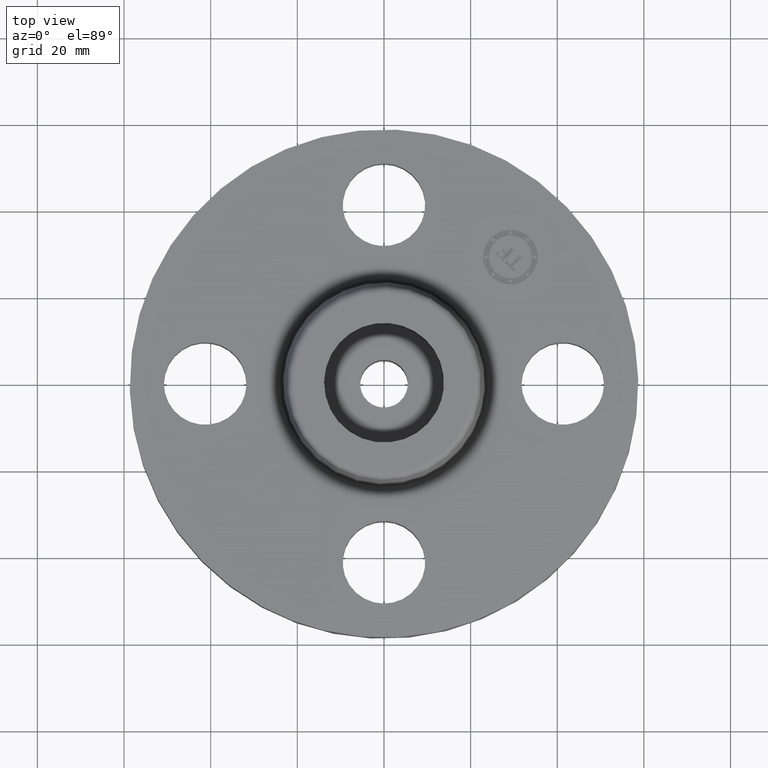
[diagram: clean part render]
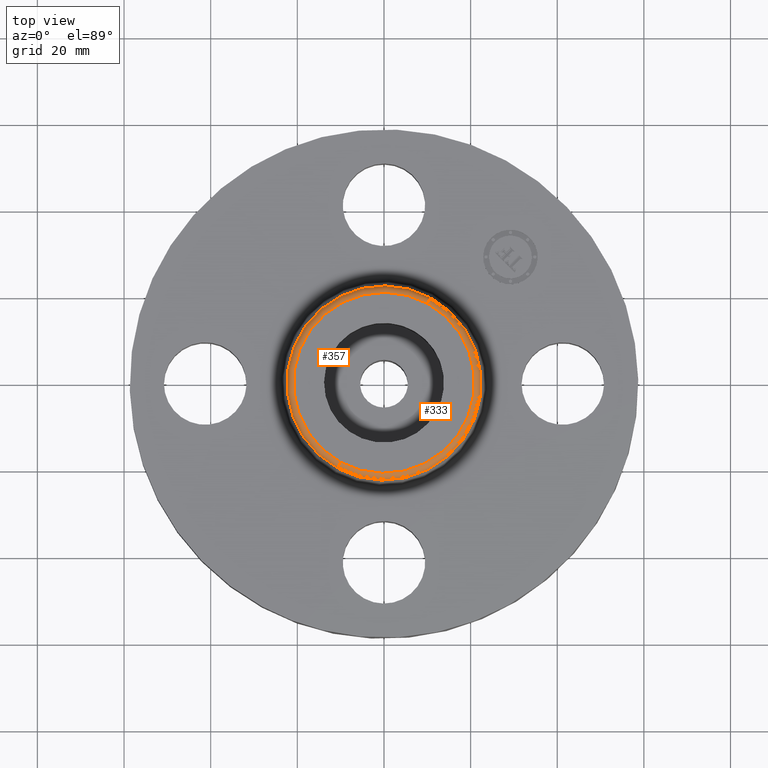
[diagram: same view with one multi-face feature highlighted, each face labeled with its STEP entity id]
A machine part, top view. The highlighted faces form ONE feature: a constant-radius fillet chain: 2 tangent blend faces with common blend radius 1.524 mm. The faces share edges in the B-rep.
Their STEP definitions:
[1] entity #333 (Torus):
#240=AXIS2_PLACEMENT_3D('Circle Axis2P3D',#238,#239,$) ;
#306=AXIS2_PLACEMENT_3D('Torus Axis2P3D',#303,#304,#305) ;
#310=AXIS2_PLACEMENT_3D('Circle Axis2P3D',#308,#309,$) ;
#319=AXIS2_PLACEMENT_3D('Circle Axis2P3D',#317,#318,$) ;
#324=AXIS2_PLACEMENT_3D('Circle Axis2P3D',#322,#323,$) ;
#238=CARTESIAN_POINT('Axis2P3D Location',(1.28117289306E-011,-6.99618840551E-012,1.)) ;
#242=CARTESIAN_POINT('Vertex',(0.394399308808,0.721943092224,1.)) ;
#244=CARTESIAN_POINT('Vertex',(-0.394399308808,-0.721943092224,1.)) ;
#303=CARTESIAN_POINT('Axis2P3D Location',(0.,0.,0.940000000004)) ;
#308=CARTESIAN_POINT('Axis2P3D Location',(0.,0.,0.950418890664)) ;
#312=CARTESIAN_POINT('Vertex',(0.422727828052,0.773798098875,0.950418890664)) ;
#314=CARTESIAN_POINT('Vertex',(-0.422727828052,-0.773798098876,0.950418890664)) ;
#317=CARTESIAN_POINT('Axis2P3D Location',(0.394399308808,0.721943092224,0.940000000004)) ;
#322=CARTESIAN_POINT('Axis2P3D Location',(-0.394399308808,-0.721943092224,0.940000000004)) ;
#239=DIRECTION('Axis2P3D Direction',(0.,0.,-0.0393700787402)) ;
#304=DIRECTION('Axis2P3D Direction',(0.,0.,-0.0393700787402)) ;
#305=DIRECTION('Axis2P3D XDirection',(0.0188750212049,0.0345504945626,0.)) ;
#309=DIRECTION('Axis2P3D Direction',(-0.,0.,-0.0393700787402)) ;
#318=DIRECTION('Axis2P3D Direction',(-0.0345504945626,0.0188750212049,0.)) ;
#323=DIRECTION('Axis2P3D Direction',(0.0345504945626,-0.0188750212049,0.)) ;
#328=ORIENTED_EDGE('',*,*,#316,.F.) ;
#329=ORIENTED_EDGE('',*,*,#321,.T.) ;
#330=ORIENTED_EDGE('',*,*,#246,.T.) ;
#331=ORIENTED_EDGE('',*,*,#326,.F.) ;
#333=ADVANCED_FACE('PartBody',(#332),#307,.T.) ;
#241=CIRCLE('generated circle',#240,0.82264976944) ;
#311=CIRCLE('generated circle',#310,0.881738234644) ;
#320=CIRCLE('generated circle',#319,0.0600000000002) ;
#325=CIRCLE('generated circle',#324,0.0600000000002) ;
#307=TOROIDAL_SURFACE('homeo Torus',#306,0.822649769463,0.0600000000002) ;
#246=EDGE_CURVE('',#243,#245,#241,.T.) ;
#316=EDGE_CURVE('',#313,#315,#311,.T.) ;
#321=EDGE_CURVE('',#313,#243,#320,.F.) ;
#326=EDGE_CURVE('',#315,#245,#325,.F.) ;
#327=EDGE_LOOP('',(#328,#329,#330,#331)) ;
#332=FACE_OUTER_BOUND('',#327,.T.) ;
#243=VERTEX_POINT('',#242) ;
#245=VERTEX_POINT('',#244) ;
#313=VERTEX_POINT('',#312) ;
#315=VERTEX_POINT('',#314) ;
[2] entity #357 (Torus):
#249=AXIS2_PLACEMENT_3D('Circle Axis2P3D',#247,#248,$) ;
#319=AXIS2_PLACEMENT_3D('Circle Axis2P3D',#317,#318,$) ;
#324=AXIS2_PLACEMENT_3D('Circle Axis2P3D',#322,#323,$) ;
#344=AXIS2_PLACEMENT_3D('Torus Axis2P3D',#341,#342,#343) ;
#348=AXIS2_PLACEMENT_3D('Circle Axis2P3D',#346,#347,$) ;
#242=CARTESIAN_POINT('Vertex',(0.394399308808,0.721943092224,1.)) ;
#244=CARTESIAN_POINT('Vertex',(-0.394399308808,-0.721943092224,1.)) ;
#247=CARTESIAN_POINT('Axis2P3D Location',(-1.28117289306E-011,7.00206297143E-012,1.)) ;
#312=CARTESIAN_POINT('Vertex',(0.422727828052,0.773798098875,0.950418890664)) ;
#314=CARTESIAN_POINT('Vertex',(-0.422727828052,-0.773798098876,0.950418890664)) ;
#317=CARTESIAN_POINT('Axis2P3D Location',(0.394399308808,0.721943092224,0.940000000004)) ;
#322=CARTESIAN_POINT('Axis2P3D Location',(-0.394399308808,-0.721943092224,0.940000000004)) ;
#341=CARTESIAN_POINT('Axis2P3D Location',(0.,0.,0.940000000004)) ;
#346=CARTESIAN_POINT('Axis2P3D Location',(0.,0.,0.950418890664)) ;
#248=DIRECTION('Axis2P3D Direction',(0.,0.,-0.0393700787402)) ;
#318=DIRECTION('Axis2P3D Direction',(-0.0345504945626,0.0188750212049,0.)) ;
#323=DIRECTION('Axis2P3D Direction',(0.0345504945626,-0.0188750212049,0.)) ;
#342=DIRECTION('Axis2P3D Direction',(0.,0.,-0.0393700787402)) ;
#343=DIRECTION('Axis2P3D XDirection',(-0.0188750212049,-0.0345504945626,0.)) ;
#347=DIRECTION('Axis2P3D Direction',(-0.,0.,-0.0393700787402)) ;
#352=ORIENTED_EDGE('',*,*,#350,.F.) ;
#353=ORIENTED_EDGE('',*,*,#326,.T.) ;
#354=ORIENTED_EDGE('',*,*,#251,.T.) ;
#355=ORIENTED_EDGE('',*,*,#321,.F.) ;
#357=ADVANCED_FACE('PartBody',(#356),#345,.T.) ;
#250=CIRCLE('generated circle',#249,0.82264976944) ;
#320=CIRCLE('generated circle',#319,0.0600000000002) ;
#325=CIRCLE('generated circle',#324,0.0600000000002) ;
#349=CIRCLE('generated circle',#348,0.881738234644) ;
#345=TOROIDAL_SURFACE('homeo Torus',#344,0.822649769463,0.0600000000002) ;
#251=EDGE_CURVE('',#245,#243,#250,.T.) ;
#321=EDGE_CURVE('',#313,#243,#320,.F.) ;
#326=EDGE_CURVE('',#315,#245,#325,.F.) ;
#350=EDGE_CURVE('',#315,#313,#349,.T.) ;
#351=EDGE_LOOP('',(#352,#353,#354,#355)) ;
#356=FACE_OUTER_BOUND('',#351,.T.) ;
#243=VERTEX_POINT('',#242) ;
#245=VERTEX_POINT('',#244) ;
#313=VERTEX_POINT('',#312) ;
#315=VERTEX_POINT('',#314) ;